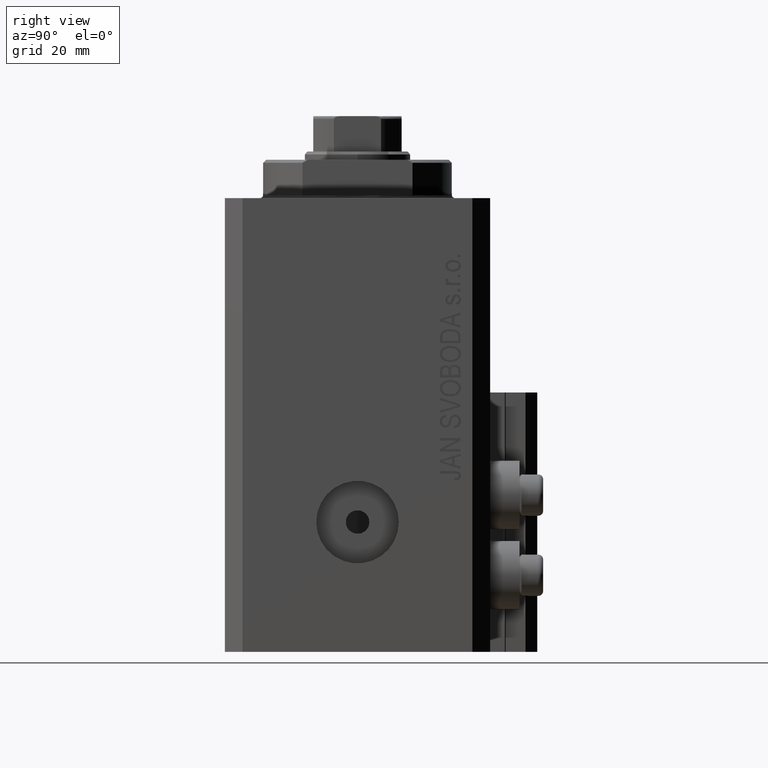
[diagram: clean part render]
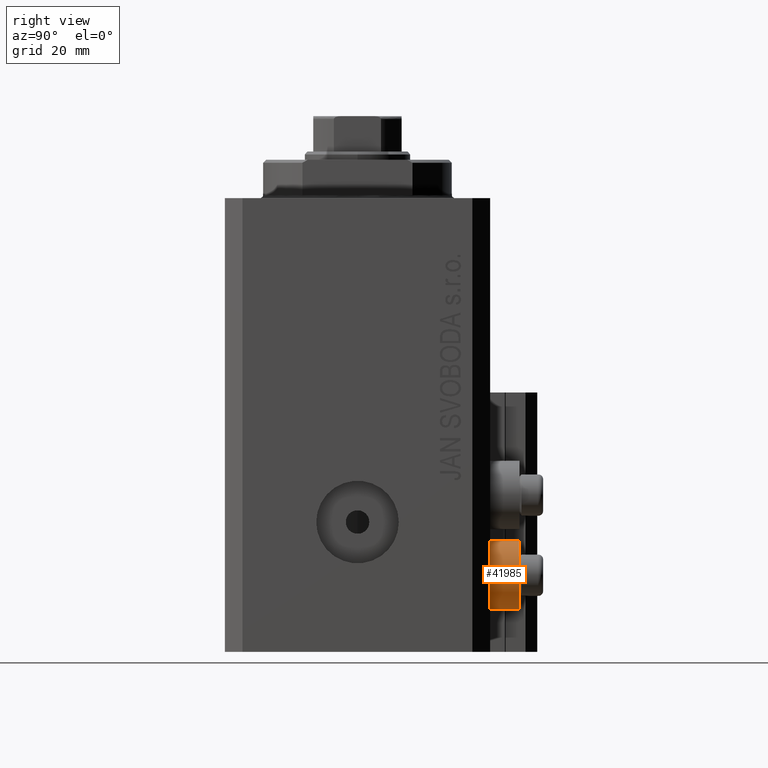
[diagram: same view with one face highlighted and labeled with its STEP entity id]
A machine part, right view. The second image highlights one B-rep face of the part: STEP entity #41985.
In plain terms, the highlighted cylindrical surface (edge-blend (fillet) strip) has radius 5.8 mm, axis along (0, 1, 0).
Its self-contained STEP definition (entity closure, byte-faithful):
#653 = DIRECTION ( 'NONE',  ( 0.000000000000000000, 1.000000000000000000, 0.000000000000000000 ) ) ;
#1181 = CIRCLE ( 'NONE', #12630, 5.799999999999999822 ) ;
#1357 = VECTOR ( 'NONE', #653, 1000.000000000000000 ) ;
#2554 = VECTOR ( 'NONE', #2978, 1000.000000000000000 ) ;
#2978 = DIRECTION ( 'NONE',  ( 0.000000000000000000, 1.000000000000000000, 0.000000000000000000 ) ) ;
#3460 = LINE ( 'NONE', #21208, #2554 ) ;
#4375 = DIRECTION ( 'NONE',  ( 0.000000000000000000, 0.000000000000000000, -1.000000000000000000 ) ) ;
#7959 = AXIS2_PLACEMENT_3D ( 'NONE', #18829, #41174, #44289 ) ;
#8188 = DIRECTION ( 'NONE',  ( 0.000000000000000000, 1.000000000000000000, 0.000000000000000000 ) ) ;
#8990 = EDGE_CURVE ( 'NONE', #29503, #10607, #9447, .T. ) ;
#9447 = CIRCLE ( 'NONE', #11728, 5.799999999999999822 ) ;
#10163 = CARTESIAN_POINT ( 'NONE',  ( 18.00000000000000355, 27.49999999996051514, -58.20000000000000284 ) ) ;
#10607 = VERTEX_POINT ( 'NONE', #46720 ) ;
#11090 = ORIENTED_EDGE ( 'NONE', *, *, #32769, .T. ) ;
#11728 = AXIS2_PLACEMENT_3D ( 'NONE', #33409, #8188, #4375 ) ;
#12348 = ORIENTED_EDGE ( 'NONE', *, *, #20424, .F. ) ;
#12602 = DIRECTION ( 'NONE',  ( 0.000000000000000000, 0.000000000000000000, -1.000000000000000000 ) ) ;
#12630 = AXIS2_PLACEMENT_3D ( 'NONE', #38067, #17170, #12602 ) ;
#17170 = DIRECTION ( 'NONE',  ( 0.000000000000000000, 1.000000000000000000, 0.000000000000000000 ) ) ;
#18829 = CARTESIAN_POINT ( 'NONE',  ( 18.00000000000000355, 27.49999999996051514, -64.00000000000000000 ) ) ;
#19100 = CARTESIAN_POINT ( 'NONE',  ( 18.00000000000000355, 27.49999999996051514, -58.20000000000000284 ) ) ;
#20424 = EDGE_CURVE ( 'NONE', #39113, #29503, #22023, .T. ) ;
#21208 = CARTESIAN_POINT ( 'NONE',  ( 18.00000000000000355, 27.49999999996051514, -69.79999999999999716 ) ) ;
#21243 = CARTESIAN_POINT ( 'NONE',  ( 18.00000000000000355, 22.49999999999951328, -69.79999999999999716 ) ) ;
#22023 = LINE ( 'NONE', #19100, #1357 ) ;
#25812 = FACE_OUTER_BOUND ( 'NONE', #41998, .T. ) ;
#29503 = VERTEX_POINT ( 'NONE', #10163 ) ;
#29584 = EDGE_CURVE ( 'NONE', #35271, #10607, #3460, .T. ) ;
#32769 = EDGE_CURVE ( 'NONE', #39113, #35271, #1181, .T. ) ;
#33409 = CARTESIAN_POINT ( 'NONE',  ( 18.00000000000000355, 27.49999999996051514, -64.00000000000000000 ) ) ;
#34683 = ORIENTED_EDGE ( 'NONE', *, *, #8990, .F. ) ;
#35271 = VERTEX_POINT ( 'NONE', #21243 ) ;
#38067 = CARTESIAN_POINT ( 'NONE',  ( 18.00000000000000355, 22.49999999999951328, -64.00000000000000000 ) ) ;
#39113 = VERTEX_POINT ( 'NONE', #44216 ) ;
#40464 = CYLINDRICAL_SURFACE ( 'NONE', #7959, 5.799999999999999822 ) ;
#40747 = ORIENTED_EDGE ( 'NONE', *, *, #29584, .T. ) ;
#41174 = DIRECTION ( 'NONE',  ( 0.000000000000000000, 1.000000000000000000, 0.000000000000000000 ) ) ;
#41985 = ADVANCED_FACE ( 'NONE', ( #25812 ), #40464, .T. ) ;
#41998 = EDGE_LOOP ( 'NONE', ( #12348, #11090, #40747, #34683 ) ) ;
#44216 = CARTESIAN_POINT ( 'NONE',  ( 18.00000000000000355, 22.49999999999951328, -58.20000000000000284 ) ) ;
#44289 = DIRECTION ( 'NONE',  ( 0.000000000000000000, 0.000000000000000000, -1.000000000000000000 ) ) ;
#46720 = CARTESIAN_POINT ( 'NONE',  ( 18.00000000000000355, 27.49999999996051514, -69.79999999999999716 ) ) ;